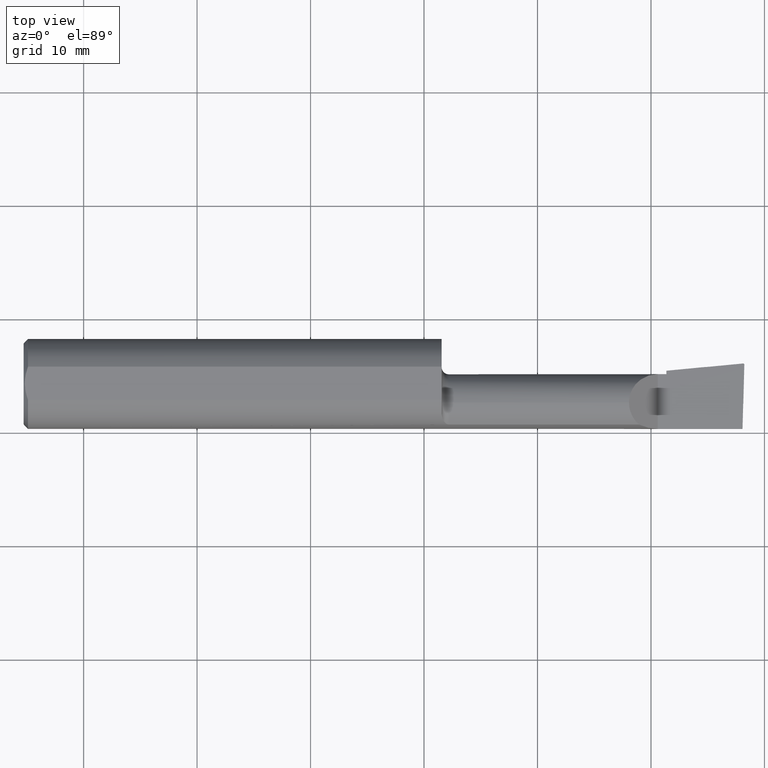
[diagram: clean part render]
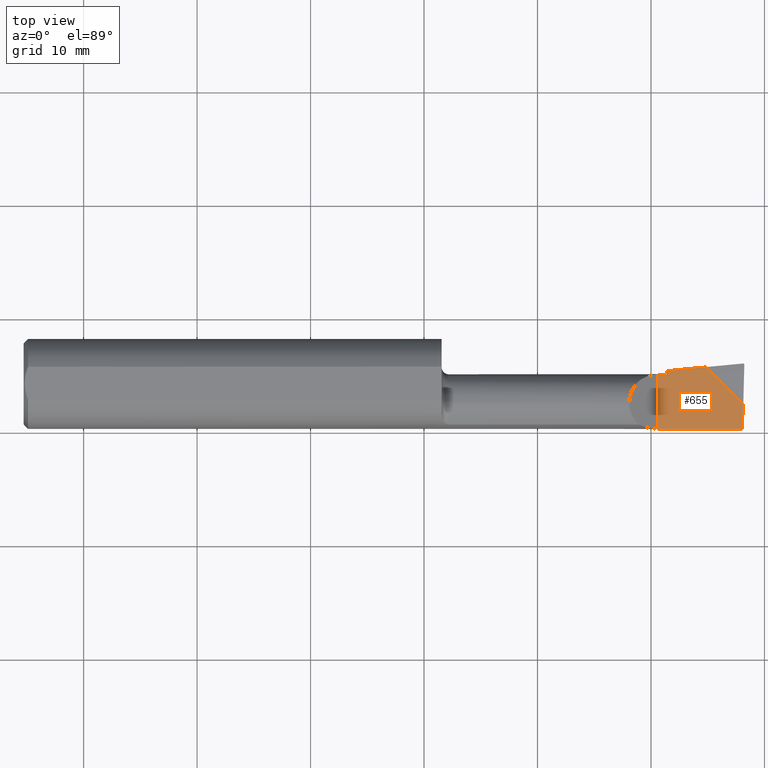
[diagram: same view with one face highlighted and labeled with its STEP entity id]
A machine part, top view. The second image highlights one B-rep face of the part: STEP entity #655.
In plain terms, the highlighted planar face has unit normal (0, 0, -1).
Its self-contained STEP definition (entity closure, byte-faithful):
#24 = PLANE ( 'NONE',  #83 ) ;
#56 = VERTEX_POINT ( 'NONE', #761 ) ;
#66 = LINE ( 'NONE', #1229, #194 ) ;
#77 = EDGE_CURVE ( 'NONE', #640, #565, #1046, .T. ) ;
#80 = EDGE_LOOP ( 'NONE', ( #311, #358, #343, #865, #1116, #249, #468 ) ) ;
#83 = AXIS2_PLACEMENT_3D ( 'NONE', #384, #407, #320 ) ;
#173 = CARTESIAN_POINT ( 'NONE',  ( 56.64199999999999591, 4.444999999999999396, -8.673617379884035472E-16 ) ) ;
#194 = VECTOR ( 'NONE', #933, 1000.000000000000000 ) ;
#204 = CARTESIAN_POINT ( 'NONE',  ( 56.64199999999999591, 1.165909707461280309, -8.673617379884035472E-16 ) ) ;
#223 = EDGE_CURVE ( 'NONE', #368, #56, #1198, .T. ) ;
#249 = ORIENTED_EDGE ( 'NONE', *, *, #917, .F. ) ;
#253 = LINE ( 'NONE', #1144, #294 ) ;
#290 = EDGE_CURVE ( 'NONE', #368, #688, #703, .T. ) ;
#294 = VECTOR ( 'NONE', #366, 1000.000000000000000 ) ;
#298 = FACE_OUTER_BOUND ( 'NONE', #80, .T. ) ;
#307 = DIRECTION ( 'NONE',  ( -1.000000000000000000, -0.000000000000000000, -0.000000000000000000 ) ) ;
#311 = ORIENTED_EDGE ( 'NONE', *, *, #290, .T. ) ;
#320 = DIRECTION ( 'NONE',  ( -1.000000000000000000, 0.000000000000000000, 0.000000000000000000 ) ) ;
#322 = CARTESIAN_POINT ( 'NONE',  ( 63.50000000000000000, -3.964939999999998577, -8.673617379884035472E-16 ) ) ;
#330 = CARTESIAN_POINT ( 'NONE',  ( 55.88000000000000256, 0.8610600000000002696, -8.673617379884035472E-16 ) ) ;
#343 = ORIENTED_EDGE ( 'NONE', *, *, #1015, .T. ) ;
#358 = ORIENTED_EDGE ( 'NONE', *, *, #1136, .F. ) ;
#366 = DIRECTION ( 'NONE',  ( 0.7071067811865437980, -0.7071067811865513475, 0.000000000000000000 ) ) ;
#368 = VERTEX_POINT ( 'NONE', #844 ) ;
#384 = CARTESIAN_POINT ( 'NONE',  ( 55.88000000000000256, 4.444999999999999396, -8.673617379884035472E-16 ) ) ;
#387 = EDGE_CURVE ( 'NONE', #1047, #640, #66, .T. ) ;
#400 = VECTOR ( 'NONE', #1026, 1000.000000000000114 ) ;
#401 = VECTOR ( 'NONE', #520, 1000.000000000000000 ) ;
#407 = DIRECTION ( 'NONE',  ( -0.000000000000000000, 0.000000000000000000, -1.000000000000000000 ) ) ;
#417 = CARTESIAN_POINT ( 'NONE',  ( 56.19984000534059021, 1.123334542424496041, -8.673617379884035472E-16 ) ) ;
#468 = ORIENTED_EDGE ( 'NONE', *, *, #223, .F. ) ;
#520 = DIRECTION ( 'NONE',  ( -0.000000000000000000, 1.000000000000000000, -0.000000000000000000 ) ) ;
#522 = CARTESIAN_POINT ( 'NONE',  ( 63.40542582631751856, -1.762165826317532158, 0.000000000000000000 ) ) ;
#565 = VERTEX_POINT ( 'NONE', #204 ) ;
#568 = DIRECTION ( 'NONE',  ( 0.000000000000000000, 1.000000000000000000, 0.000000000000000000 ) ) ;
#587 = VECTOR ( 'NONE', #568, 1000.000000000000000 ) ;
#602 = LINE ( 'NONE', #694, #401 ) ;
#634 = LINE ( 'NONE', #417, #670 ) ;
#640 = VERTEX_POINT ( 'NONE', #776 ) ;
#655 = ADVANCED_FACE ( 'NONE', ( #298 ), #24, .F. ) ;
#670 = VECTOR ( 'NONE', #822, 1000.000000000000114 ) ;
#688 = VERTEX_POINT ( 'NONE', #522 ) ;
#694 = CARTESIAN_POINT ( 'NONE',  ( 55.88000000000000256, 4.444999999999999396, -8.673617379884035472E-16 ) ) ;
#703 = LINE ( 'NONE', #1113, #400 ) ;
#707 = VECTOR ( 'NONE', #307, 1000.000000000000000 ) ;
#761 = CARTESIAN_POINT ( 'NONE',  ( 55.88000000000000256, -3.964939999999999465, -8.673617379884035472E-16 ) ) ;
#767 = CARTESIAN_POINT ( 'NONE',  ( 60.14048454551709000, 1.502775454482921269, 0.000000000000000000 ) ) ;
#776 = CARTESIAN_POINT ( 'NONE',  ( 56.64199999999999591, 0.8610600000000002696, -8.673617379884035472E-16 ) ) ;
#822 = DIRECTION ( 'NONE',  ( -0.9953961983671787417, -0.09584575252022449476, 0.000000000000000000 ) ) ;
#844 = CARTESIAN_POINT ( 'NONE',  ( 63.34737096957299229, -3.964939999999998577, -1.734723475976807094E-15 ) ) ;
#865 = ORIENTED_EDGE ( 'NONE', *, *, #77, .F. ) ;
#917 = EDGE_CURVE ( 'NONE', #56, #1047, #602, .T. ) ;
#933 = DIRECTION ( 'NONE',  ( 1.000000000000000000, 0.000000000000000000, 0.000000000000000000 ) ) ;
#1015 = EDGE_CURVE ( 'NONE', #1227, #565, #634, .T. ) ;
#1026 = DIRECTION ( 'NONE',  ( 0.02634618898890611627, 0.9996528789163570128, 0.000000000000000000 ) ) ;
#1046 = LINE ( 'NONE', #173, #587 ) ;
#1047 = VERTEX_POINT ( 'NONE', #330 ) ;
#1113 = CARTESIAN_POINT ( 'NONE',  ( 63.56368066258591654, 4.242494003031995753, -8.673617379884035472E-16 ) ) ;
#1116 = ORIENTED_EDGE ( 'NONE', *, *, #387, .F. ) ;
#1136 = EDGE_CURVE ( 'NONE', #1227, #688, #253, .T. ) ;
#1144 = CARTESIAN_POINT ( 'NONE',  ( 59.81700000000001438, 1.826260000000001327, 0.000000000000000000 ) ) ;
#1198 = LINE ( 'NONE', #322, #707 ) ;
#1227 = VERTEX_POINT ( 'NONE', #767 ) ;
#1229 = CARTESIAN_POINT ( 'NONE',  ( 36.82999999999999829, 0.8610600000000002696, -8.673617379884035472E-16 ) ) ;